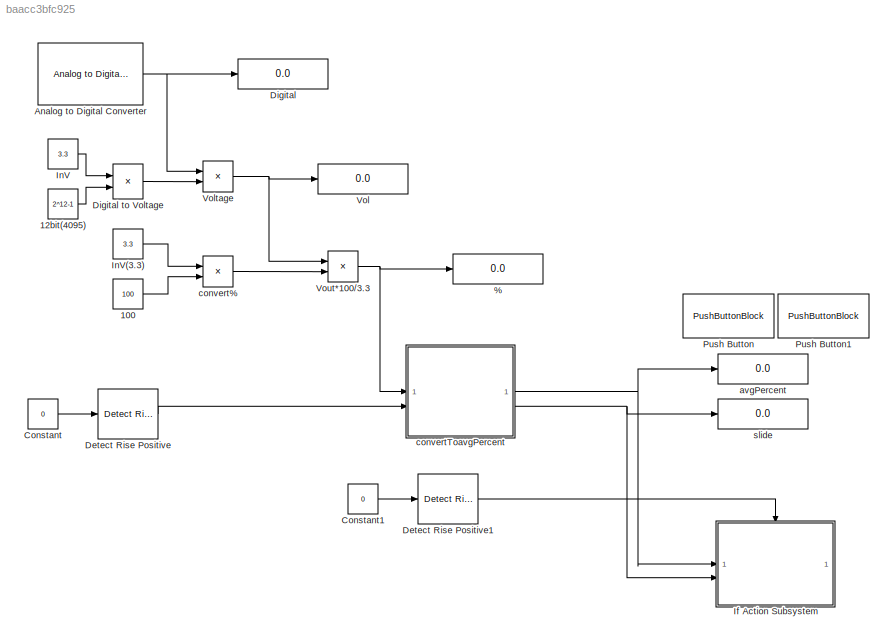
MODEL slx_baacc3bfc925
KIND model
CONFIG AbsTol = auto
CONFIG EnableMultiTasking = on
CONFIG FixedStep = 0.001
CONFIG MaxStep = auto
CONFIG MinStep = auto
CONFIG RelTol = 1e-3
CONFIG SampleTimeConstraint = Unconstrained
CONFIG SolverName = FixedStepAuto
CONFIG StartTime = 0.0
CONFIG StopTime = inf
BLOCK [Display] %
  Decimation = 1
BLOCK [Constant] 100
  Value = 100
BLOCK [Constant] 12bit(4095)
  Value = 2^12-1
BLOCK [Reference] Analog to Digital Converter  REF=stm32f4xxblockslib/Analog to Digital Converter
  LibrarySourceBlock = stm32g4xxblockslib/Analog to Digital Converter
  SourceBlock = stm32f4xxblockslib/Analog to Digital Converter
  SourceType = stm32cube.blocks.AnalogInput
BLOCK [Constant] Constant
  Value = 0
BLOCK [Constant] Constant1
  Value = 0
BLOCK [Reference] Detect Rise Positive  REF=simulink/Logic and Bit
Operations/Detect Rise
Positive
  SourceBlock = simulink/Logic and Bit\nOperations/Detect Rise\nPositive
  SourceType = Detect Rise Positive
BLOCK [Reference] Detect Rise Positive1  REF=simulink/Logic and Bit
Operations/Detect Rise
Positive
  SourceBlock = simulink/Logic and Bit\nOperations/Detect Rise\nPositive
  SourceType = Detect Rise Positive
BLOCK [Display] Digital
  Decimation = 1
BLOCK [Product] Digital to Voltage
  Inputs = */
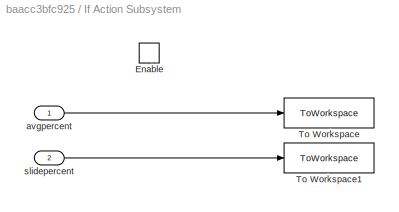
BLOCK [SubSystem] If Action Subsystem
  TreatAsAtomicUnit = on
BLOCK [EnablePort] If Action Subsystem/Enable
BLOCK [ToWorkspace] If Action Subsystem/To Workspace
  FixptAsFi = on
  MaxDataPoints = inf
  SampleTime = -1
  VariableName = avgpercent
BLOCK [ToWorkspace] If Action Subsystem/To Workspace1
  FixptAsFi = on
  MaxDataPoints = inf
  SampleTime = -1
  VariableName = slidepercent
BLOCK [Inport] If Action Subsystem/avgpercent
BLOCK [Inport] If Action Subsystem/slidepercent
  Port = 2
BLOCK [Constant] InV
  Value = 3.3
BLOCK [Constant] InV(3.3)
  Value = 3.3
BLOCK [PushButtonBlock] Push Button
  ButtonText = ปุ่มหล่อเท่นิรนาม
  OffValue = 0.000000
BLOCK [PushButtonBlock] Push Button1
  ButtonText = ปุ่มสุดสวยนิรนาม
  OffValue = 0.000000
BLOCK [Display] Vol
  Decimation = 1
BLOCK [Product] Voltage
BLOCK [Product] Vout*100//3.3
BLOCK [Display] avgPercent
  Decimation = 1
BLOCK [Product] convert%
  Inputs = /*
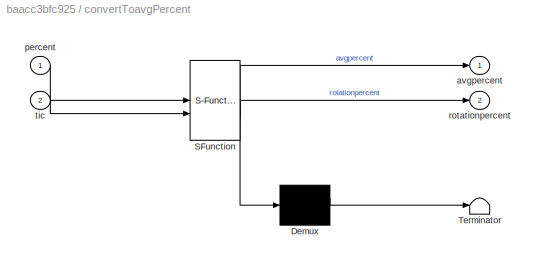
BLOCK [SubSystem] convertToavgPercent
  ErrorFcn = Stateflow.Translate.translate
  PermitHierarchicalResolution = ExplicitOnly
  SFBlockType = Chart
  TreatAsAtomicUnit = on
BLOCK [Demux] convertToavgPercent/ Demux 
  Outputs = 1
BLOCK [S-Function] convertToavgPercent/ SFunction 
  EnableBusSupport = on
  FunctionName = sf_sfun
  PortCounts = [2 3]
  SFcnIsStateOwnerBlock = off
  SFunctionDeploymentMode = off
  Tag = Stateflow S-Function 1
BLOCK [Terminator] convertToavgPercent/ Terminator 
BLOCK [Outport] convertToavgPercent/avgpercent
BLOCK [Inport] convertToavgPercent/percent
BLOCK [Outport] convertToavgPercent/rotationpercent
  Port = 2
BLOCK [Inport] convertToavgPercent/tic
  Port = 2
BLOCK [Display] slide
  Decimation = 1
LINE 100:1 -> convert%:2
LINE 12bit(4095):1 -> Digital to Voltage:2
NET Analog to Digital Converter:1 -> Digital:1, Voltage:1
LINE Constant1:1 -> Detect Rise Positive1:1
LINE Constant:1 -> Detect Rise Positive:1
LINE Detect Rise Positive1:1 -> If Action Subsystem:enable
LINE Detect Rise Positive:1 -> convertToavgPercent:2
LINE Digital to Voltage:1 -> Voltage:2
LINE If Action Subsystem/avgpercent:1 -> If Action Subsystem/To Workspace:1
LINE If Action Subsystem/slidepercent:1 -> If Action Subsystem/To Workspace1:1
LINE InV(3.3):1 -> convert%:1
LINE InV:1 -> Digital to Voltage:1
NET Voltage:1 -> Vol:1, Vout*100//3.3:1
NET Vout*100//3.3:1 -> %:1, convertToavgPercent:1
LINE convert%:1 -> Vout*100//3.3:2
NET convertToavgPercent:1 -> If Action Subsystem:1, avgPercent:1
NET convertToavgPercent:2 -> If Action Subsystem:2, slide:1
note: NET lines group one-source signal fan-out (src -> all destinations, sorted); 1:1 wires keep LINE
CHART convertToavgPercent states=3 transitions=4
  STATE_LABEL 'start\nentry:\ncontain = 0;\ncounting = 1000;\ntime = 0;\nrotationpercent = -10;'
  STATE_LABEL 'reset\nentry:\ncontain = 0;\ncounting = 1000;\ntime = 0;\n'
  STATE_LABEL 'get1000value\nduring:\ntime = time+0.001;\ncontain = contain+percent;\nexit:\navgpercent = contain/counting;\nrotationpercent = rotationpercent + 10;\n'
CHART  states=0 transitions=0
